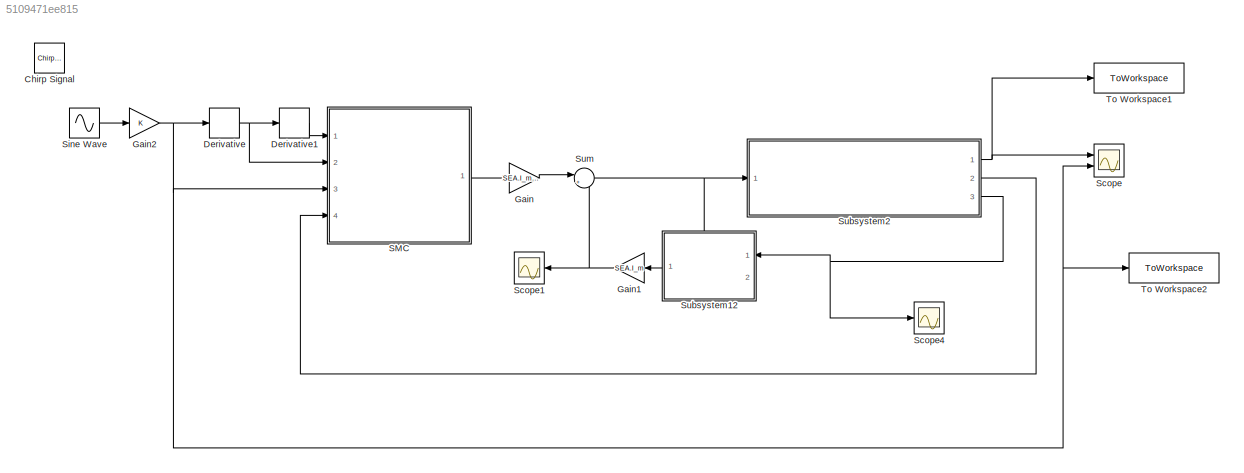
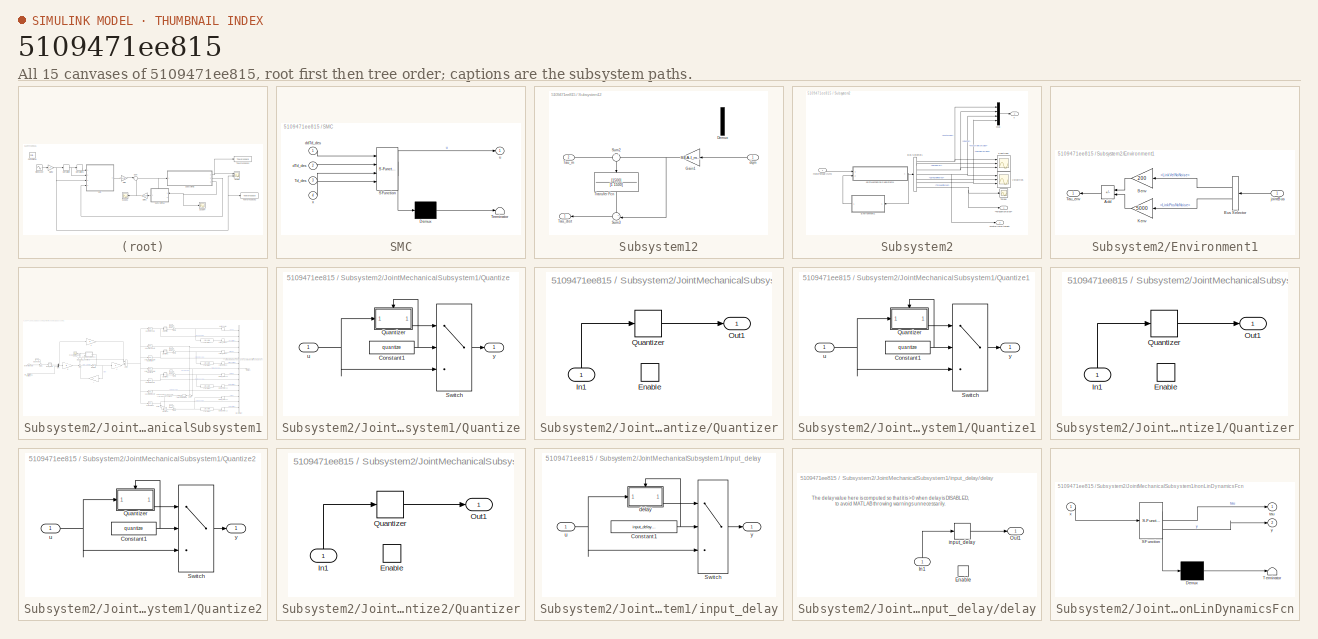
[diagram: thumbnail index - all 15 canvases of the model, root first then tree order]
MODEL slx_5109471ee815
KIND model
CONFIG AbsTol = auto
CONFIG EnableMultiTasking = off
CONFIG FixedStep = 1e-4
CONFIG MaxStep = auto
CONFIG MinStep = auto
CONFIG RelTol = 1e-3
CONFIG SampleTimeConstraint = Unconstrained
CONFIG Solver = FixedStepAuto
CONFIG SolverName = FixedStepAuto
CONFIG StartTime = 0.0
CONFIG StopTime = 10.0
BLOCK [Reference] Chirp Signal  REF=simulink/Sources/Chirp Signal
  Ports = [0, 1]
  SourceBlock = simulink/Sources/Chirp Signal
  SourceProductBaseCode = SL
  SourceType = chirp
BLOCK [Derivative] Derivative
BLOCK [Derivative] Derivative1
BLOCK [Gain] Gain
  Gain = SEA.I_m*SEA.n
BLOCK [Gain] Gain1
  Gain = SEA.I_m
BLOCK [Gain] Gain2
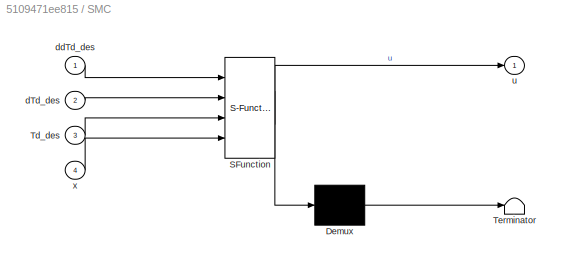
BLOCK [SubSystem] SMC
  ErrorFcn = Stateflow.Translate.translate
  PermitHierarchicalResolution = ExplicitOnly
  Ports = [4, 1]
  RequestExecContextInheritance = off
  SFBlockType = MATLAB Function
  TreatAsAtomicUnit = on
BLOCK [Demux] SMC/ Demux 
  Outputs = 1
  Ports = [1, 1]
BLOCK [S-Function] SMC/ SFunction 
  EnableBusSupport = on
  FunctionName = sf_sfun
  PortCounts = [4 2]
  Ports = [4, 2]
  SFcnIsStateOwnerBlock = off
  SFunctionDeploymentMode = off
  Tag = Stateflow S-Function 2
BLOCK [Terminator] SMC/ Terminator 
BLOCK [Inport] SMC/Td_des
  Port = 3
BLOCK [Inport] SMC/dTd_des
  Port = 2
BLOCK [Inport] SMC/ddTd_des
BLOCK [Outport] SMC/u
BLOCK [Inport] SMC/x
  Port = 4
BLOCK [Scope] Scope
  Floating = off
  NumInputPorts = 2
  Ports = [2]
  ScopeSpecificationString = Simulink.scopes.TimeScopeBlockCfg('CurrentConfiguration', extmgr.ConfigurationSet(extmgr.Configuration('Core','General UI',true),extmgr.Configuration('Core','Source UI',true),extmgr.Configuration('Sources','WiredSimulink',true,'DataLoggingVariableName','ScopeData1'),extmgr.Configuration('Visuals','Time Domain',true,'SerializedDisplays',{struct('MinYLimReal','-1.25835','MaxYLimReal','1.25581','YLab...<+1490ch>
BLOCK [Scope] Scope1
  Floating = off
  NumInputPorts = 1
  Ports = [1]
  ScopeSpecificationString = Simulink.scopes.TimeScopeBlockCfg('CurrentConfiguration', extmgr.ConfigurationSet(extmgr.Configuration('Core','General UI',true),extmgr.Configuration('Core','Source UI',true),extmgr.Configuration('Sources','WiredSimulink',true,'DataLoggingVariableName','ScopeData2'),extmgr.Configuration('Visuals','Time Domain',true,'SerializedDisplays',{struct('MinYLimReal','-68876628264511.375','MaxYLimReal','677...<+1502ch>
BLOCK [Scope] Scope4
  Floating = off
  NumInputPorts = 1
  Ports = [1]
  ScopeSpecificationString = Simulink.scopes.TimeScopeBlockCfg('CurrentConfiguration', extmgr.ConfigurationSet(extmgr.Configuration('Core','General UI',true),extmgr.Configuration('Core','Source UI',true),extmgr.Configuration('Sources','WiredSimulink',true,'DataLoggingVariableName','ScopeData6'),extmgr.Configuration('Visuals','Time Domain',true,'SerializedDisplays',{struct('MinYLimReal','-1.86203','MaxYLimReal','1.82294','YLab...<+1429ch>
BLOCK [Sin] Sine Wave
  Ports = [0, 1]
  SampleTime = 0
BLOCK [SubSystem] Subsystem12
  PortSchema = {"entries":[{"content":{"sides":[{"content":{"connectorIds":["In1"]},"type":"ConnectorPlacement.EquallySpacedRectSide","uuid":"0907aefd-0f6e-4178-ae67-82d4302ffa8c"},{"content":{"connectorIds":["Out1"],"side":"RIGHT"},"type":"ConnectorPlacement.EquallySpacedRectSide","uuid":"771a5b93-7111-4ff8-830e-f982bc5484c0"},{"content":{"connectorIds":["In2"],"side":"TOP"},"type":"ConnectorPlacement.EquallySp...<+247ch>
  Ports = [2, 1]
  RequestExecContextInheritance = off
BLOCK [Demux] Subsystem12/Demux
  Commented = on
  Outputs = 3
  Ports = [1, 3]
BLOCK [Gain] Subsystem12/Gain1
  Gain = SEA.I_m*1500
BLOCK [Sum] Subsystem12/Sum2
  Inputs = +|+
  NameLocation = left
  Ports = [2, 1]
BLOCK [Sum] Subsystem12/Sum3
  Inputs = +-|
  Ports = [2, 1]
BLOCK [Outport] Subsystem12/Tau_dist
BLOCK [Inport] Subsystem12/Tau_m
  Port = 2
BLOCK [TransferFcn] Subsystem12/Transfer Fcn
  Denominator = [1 1500]
  NameLocation = left
  Numerator = [1500]
BLOCK [Inport] Subsystem12/dqm
BLOCK [SubSystem] Subsystem2
  Ports = [1, 3]
  RequestExecContextInheritance = off
BLOCK [Outport] Subsystem2/<MotorVelFiltered>
  Port = 3
BLOCK [Outport] Subsystem2/<TorqueNoNoise>
BLOCK [BusSelector] Subsystem2/Bus Selector1
  OutputSignals = MotorPos,SpringDef,LinkPos,MotorVelNoNoise,SpringVelFiltered,LinkVelNoNoise,TorqueFiltered
  Ports = [1, 7]
BLOCK [SubSystem] Subsystem2/Environment1
  Ports = [1, 1]
  RequestExecContextInheritance = off
BLOCK [Sum] Subsystem2/Environment1/Add
  IconShape = rectangular
  Inputs = --
  Ports = [2, 1]
BLOCK [Gain] Subsystem2/Environment1/Benv
  Gain = 200
BLOCK [BusSelector] Subsystem2/Environment1/Bus Selector
  OutputSignals = LinkVelNoNoise,LinkPosNoNoise
  Ports = [1, 2]
BLOCK [Gain] Subsystem2/Environment1/Kenv
  Gain = 5000
BLOCK [Outport] Subsystem2/Environment1/Tau_env
BLOCK [Inport] Subsystem2/Environment1/jointBus
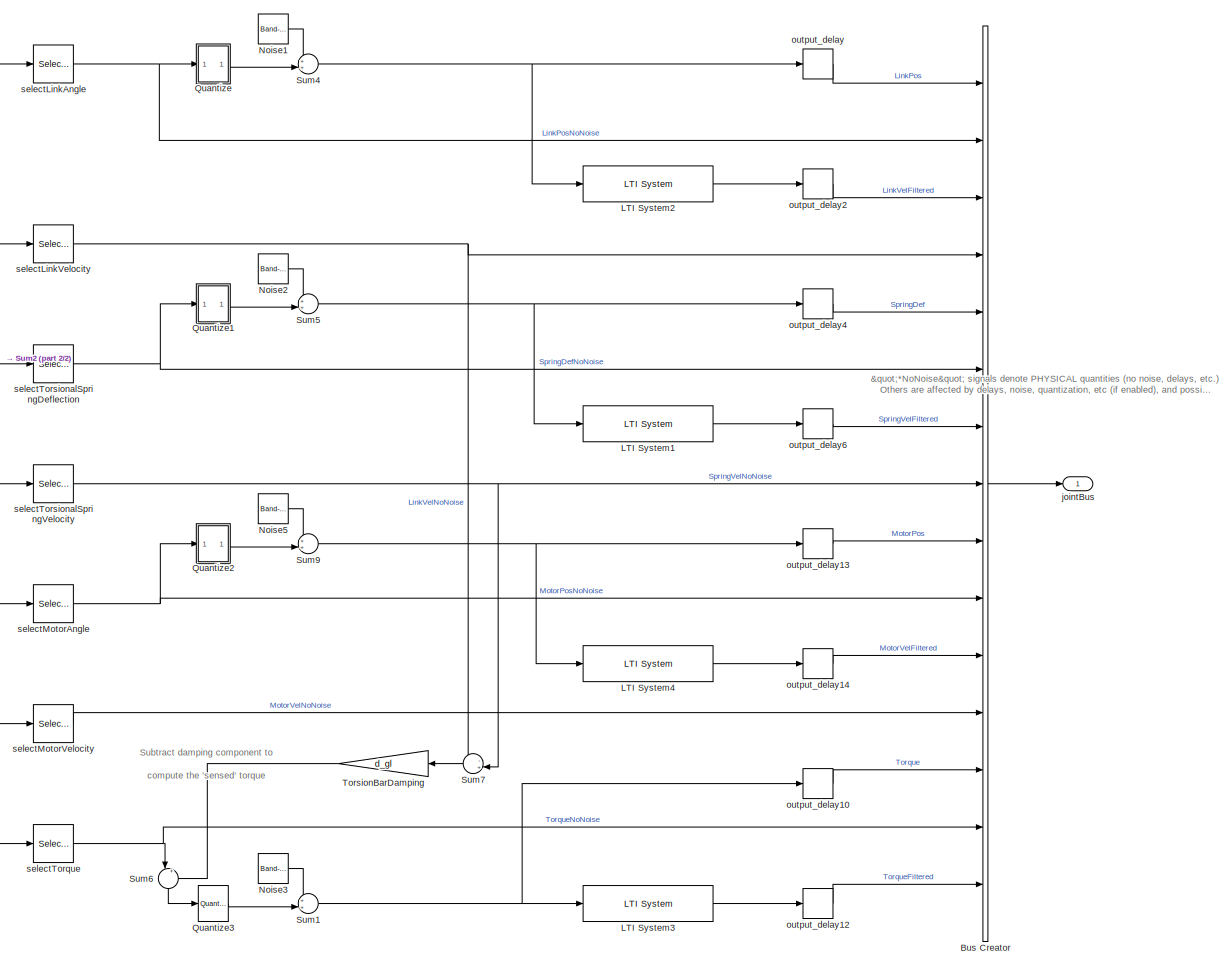
[diagram: Subsystem2/JointMechanicalSubsystem1 - part 1/2, right side, full height]
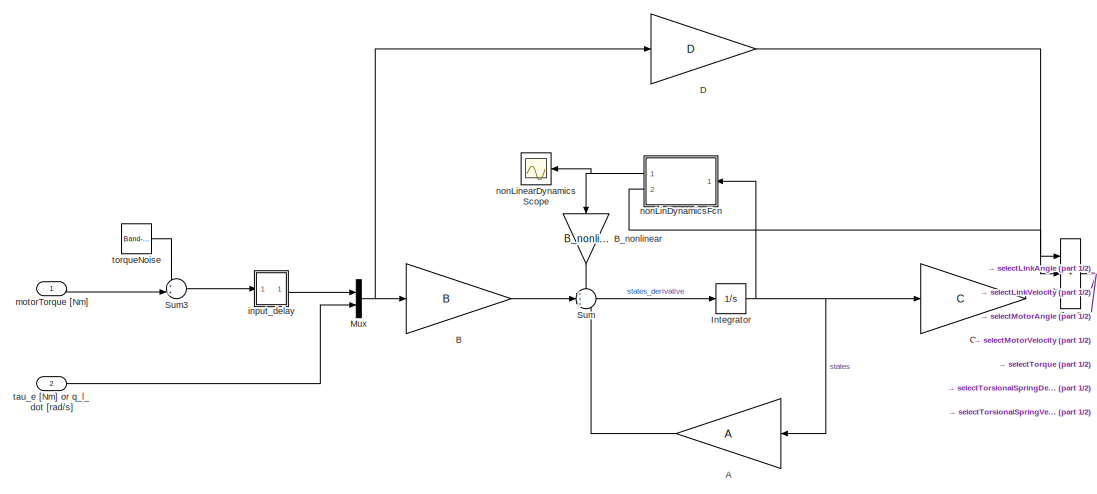
[diagram: Subsystem2/JointMechanicalSubsystem1 - part 2/2, middle left region]
BLOCK [SubSystem] Subsystem2/JointMechanicalSubsystem1
  AncestorBlock = cjt_library_models/Joint models/JointMechanicalSubsystem
  Ports = [2, 1]
  RequestExecContextInheritance = off
BLOCK [Gain] Subsystem2/JointMechanicalSubsystem1/A
  Gain = A
  Multiplication = Matrix(K*u)
BLOCK [Gain] Subsystem2/JointMechanicalSubsystem1/B
  Gain = B
  Multiplication = Matrix(K*u)
BLOCK [Gain] Subsystem2/JointMechanicalSubsystem1/B_nonlinear
  Gain = B_nonlinear
  NameLocation = left
BLOCK [BusCreator] Subsystem2/JointMechanicalSubsystem1/Bus Creator
  DisplayOption = bar
  InheritFromInputs = on
  Inputs = 15
  Ports = [15, 1]
BLOCK [Gain] Subsystem2/JointMechanicalSubsystem1/C
  Gain = C
  Multiplication = Matrix(K*u)
  NameLocation = top
BLOCK [Gain] Subsystem2/JointMechanicalSubsystem1/D
  Gain = D
  Multiplication = Matrix(K*u)
BLOCK [Integrator] Subsystem2/JointMechanicalSubsystem1/Integrator
  Ports = [1, 1]
BLOCK [Reference] Subsystem2/JointMechanicalSubsystem1/LTI System1  REF=cstblocks/LTI System
  Ports = [1, 1]
  SourceBlock = cstblocks/LTI System
  SourceProductBaseCode = CT
  SourceType = LTI Block
BLOCK [Reference] Subsystem2/JointMechanicalSubsystem1/LTI System2  REF=cstblocks/LTI System
  Ports = [1, 1]
  SourceBlock = cstblocks/LTI System
  SourceProductBaseCode = CT
  SourceType = LTI Block
BLOCK [Reference] Subsystem2/JointMechanicalSubsystem1/LTI System3  REF=cstblocks/LTI System
  Ports = [1, 1]
  SourceBlock = cstblocks/LTI System
  SourceProductBaseCode = CT
  SourceType = LTI Block
BLOCK [Reference] Subsystem2/JointMechanicalSubsystem1/LTI System4  REF=cstblocks/LTI System
  Ports = [1, 1]
  SourceBlock = cstblocks/LTI System
  SourceProductBaseCode = CT
  SourceType = LTI Block
BLOCK [Mux] Subsystem2/JointMechanicalSubsystem1/Mux
  DisplayOption = bar
  Inputs = 2
  Ports = [2, 1]
BLOCK [Reference] Subsystem2/JointMechanicalSubsystem1/Noise1  REF=simulink/Sources/Band-Limited
White Noise
  Ports = [0, 1]
  SourceBlock = simulink/Sources/Band-Limited\nWhite Noise
  SourceProductBaseCode = SL
  SourceType = Band-Limited White Noise.
BLOCK [Reference] Subsystem2/JointMechanicalSubsystem1/Noise2  REF=simulink/Sources/Band-Limited
White Noise
  Ports = [0, 1]
  SourceBlock = simulink/Sources/Band-Limited\nWhite Noise
  SourceProductBaseCode = SL
  SourceType = Band-Limited White Noise.
BLOCK [Reference] Subsystem2/JointMechanicalSubsystem1/Noise3  REF=simulink/Sources/Band-Limited
White Noise
  Ports = [0, 1]
  SourceBlock = simulink/Sources/Band-Limited\nWhite Noise
  SourceProductBaseCode = SL
  SourceType = Band-Limited White Noise.
BLOCK [Reference] Subsystem2/JointMechanicalSubsystem1/Noise5  REF=simulink/Sources/Band-Limited
White Noise
  Ports = [0, 1]
  SourceBlock = simulink/Sources/Band-Limited\nWhite Noise
  SourceProductBaseCode = SL
  SourceType = Band-Limited White Noise.
BLOCK [SubSystem] Subsystem2/JointMechanicalSubsystem1/Quantize
  Ports = [1, 1]
  RequestExecContextInheritance = off
BLOCK [Constant] Subsystem2/JointMechanicalSubsystem1/Quantize/Constant1
  Value = quantize
BLOCK [SubSystem] Subsystem2/JointMechanicalSubsystem1/Quantize/Quantizer
  Ports = [1, 1, 1]
  RequestExecContextInheritance = off
BLOCK [EnablePort] Subsystem2/JointMechanicalSubsystem1/Quantize/Quantizer/Enable
  Ports = []
BLOCK [Inport] Subsystem2/JointMechanicalSubsystem1/Quantize/Quantizer/In1
  NameLocation = right
BLOCK [Outport] Subsystem2/JointMechanicalSubsystem1/Quantize/Quantizer/Out1
BLOCK [Quantizer] Subsystem2/JointMechanicalSubsystem1/Quantize/Quantizer/Quantizer
  QuantizationInterval = 1/(2^quantize_bits)
BLOCK [Switch] Subsystem2/JointMechanicalSubsystem1/Quantize/Switch
  Criteria = u2 > Threshold
  InputSameDT = off
  SaturateOnIntegerOverflow = off
  Threshold = 0.5
BLOCK [Inport] Subsystem2/JointMechanicalSubsystem1/Quantize/u
BLOCK [Outport] Subsystem2/JointMechanicalSubsystem1/Quantize/y
BLOCK [SubSystem] Subsystem2/JointMechanicalSubsystem1/Quantize1
  Ports = [1, 1]
  RequestExecContextInheritance = off
BLOCK [Constant] Subsystem2/JointMechanicalSubsystem1/Quantize1/Constant1
  Value = quantize
BLOCK [SubSystem] Subsystem2/JointMechanicalSubsystem1/Quantize1/Quantizer
  Ports = [1, 1, 1]
  RequestExecContextInheritance = off
BLOCK [EnablePort] Subsystem2/JointMechanicalSubsystem1/Quantize1/Quantizer/Enable
  Ports = []
BLOCK [Inport] Subsystem2/JointMechanicalSubsystem1/Quantize1/Quantizer/In1
  NameLocation = right
BLOCK [Outport] Subsystem2/JointMechanicalSubsystem1/Quantize1/Quantizer/Out1
BLOCK [Quantizer] Subsystem2/JointMechanicalSubsystem1/Quantize1/Quantizer/Quantizer
  QuantizationInterval = 1/(2^quantize_bits)
BLOCK [Switch] Subsystem2/JointMechanicalSubsystem1/Quantize1/Switch
  Criteria = u2 > Threshold
  InputSameDT = off
  SaturateOnIntegerOverflow = off
  Threshold = 0.5
BLOCK [Inport] Subsystem2/JointMechanicalSubsystem1/Quantize1/u
BLOCK [Outport] Subsystem2/JointMechanicalSubsystem1/Quantize1/y
BLOCK [SubSystem] Subsystem2/JointMechanicalSubsystem1/Quantize2
  Ports = [1, 1]
  RequestExecContextInheritance = off
BLOCK [Constant] Subsystem2/JointMechanicalSubsystem1/Quantize2/Constant1
  Value = quantize
BLOCK [SubSystem] Subsystem2/JointMechanicalSubsystem1/Quantize2/Quantizer
  Ports = [1, 1, 1]
  RequestExecContextInheritance = off
BLOCK [EnablePort] Subsystem2/JointMechanicalSubsystem1/Quantize2/Quantizer/Enable
  Ports = []
BLOCK [Inport] Subsystem2/JointMechanicalSubsystem1/Quantize2/Quantizer/In1
  NameLocation = right
BLOCK [Outport] Subsystem2/JointMechanicalSubsystem1/Quantize2/Quantizer/Out1
BLOCK [Quantizer] Subsystem2/JointMechanicalSubsystem1/Quantize2/Quantizer/Quantizer
  QuantizationInterval = 1/(2^quantize_bits)
BLOCK [Switch] Subsystem2/JointMechanicalSubsystem1/Quantize2/Switch
  Criteria = u2 > Threshold
  InputSameDT = off
  SaturateOnIntegerOverflow = off
  Threshold = 0.5
BLOCK [Inport] Subsystem2/JointMechanicalSubsystem1/Quantize2/u
BLOCK [Outport] Subsystem2/JointMechanicalSubsystem1/Quantize2/y
BLOCK [Reference] Subsystem2/JointMechanicalSubsystem1/Quantize3  REF=cjt_library_models/Joint models/JointMechanicalSubsystem/Quantize2
  Ports = [1, 1]
  SourceBlock = cjt_library_models/Joint models/JointMechanicalSubsystem/Quantize2
  SourceType = SubSystem
BLOCK [Sum] Subsystem2/JointMechanicalSubsystem1/Sum
  Inputs = +++
  Ports = [3, 1]
BLOCK [Sum] Subsystem2/JointMechanicalSubsystem1/Sum1
  Inputs = ++|
  Ports = [2, 1]
BLOCK [Sum] Subsystem2/JointMechanicalSubsystem1/Sum2
  IconShape = rectangular
  Inputs = +++
  Ports = [3, 1]
BLOCK [Sum] Subsystem2/JointMechanicalSubsystem1/Sum3
  Inputs = ++|
  Ports = [2, 1]
BLOCK [Sum] Subsystem2/JointMechanicalSubsystem1/Sum4
  Inputs = ++|
  Ports = [2, 1]
BLOCK [Sum] Subsystem2/JointMechanicalSubsystem1/Sum5
  Inputs = ++|
  Ports = [2, 1]
BLOCK [Sum] Subsystem2/JointMechanicalSubsystem1/Sum6
  Inputs = |+-
  NameLocation = left
  Ports = [2, 1]
BLOCK [Sum] Subsystem2/JointMechanicalSubsystem1/Sum7
  Inputs = -+|
  NameLocation = top
  Ports = [2, 1]
BLOCK [Sum] Subsystem2/JointMechanicalSubsystem1/Sum9
  Inputs = ++|
  Ports = [2, 1]
BLOCK [Gain] Subsystem2/JointMechanicalSubsystem1/TorsionBarDamping
  Gain = d_gl
  NameLocation = top
BLOCK [SubSystem] Subsystem2/JointMechanicalSubsystem1/input_delay
  Ports = [1, 1]
  RequestExecContextInheritance = off
BLOCK [Constant] Subsystem2/JointMechanicalSubsystem1/input_delay/Constant1
  Value = input_delay_enable
BLOCK [Switch] Subsystem2/JointMechanicalSubsystem1/input_delay/Switch
  Criteria = u2 > Threshold
  InputSameDT = off
  SaturateOnIntegerOverflow = off
BLOCK [SubSystem] Subsystem2/JointMechanicalSubsystem1/input_delay/delay
  Ports = [1, 1, 1]
  RequestExecContextInheritance = off
BLOCK [EnablePort] Subsystem2/JointMechanicalSubsystem1/input_delay/delay/Enable
  Ports = []
BLOCK [Inport] Subsystem2/JointMechanicalSubsystem1/input_delay/delay/In1
  NameLocation = right
BLOCK [Outport] Subsystem2/JointMechanicalSubsystem1/input_delay/delay/Out1
BLOCK [TransportDelay] Subsystem2/JointMechanicalSubsystem1/input_delay/delay/input_delay
  DelayTime = input_delay * jointObj.Ts + 1 - input_delay_enable
  Ports = [1, 1]
  TransDelayFeedthrough = on
BLOCK [Inport] Subsystem2/JointMechanicalSubsystem1/input_delay/u
BLOCK [Outport] Subsystem2/JointMechanicalSubsystem1/input_delay/y
BLOCK [Outport] Subsystem2/JointMechanicalSubsystem1/jointBus
BLOCK [Inport] Subsystem2/JointMechanicalSubsystem1/motorTorque [Nm]
BLOCK [SubSystem] Subsystem2/JointMechanicalSubsystem1/nonLinDynamicsFcn
  ErrorFcn = Stateflow.Translate.translate
  PermitHierarchicalResolution = ExplicitOnly
  Ports = [1, 2]
  RequestExecContextInheritance = off
  SFBlockType = MATLAB Function
  TreatAsAtomicUnit = on
BLOCK [Demux] Subsystem2/JointMechanicalSubsystem1/nonLinDynamicsFcn/ Demux 
  Outputs = 1
  Ports = [1, 1]
BLOCK [S-Function] Subsystem2/JointMechanicalSubsystem1/nonLinDynamicsFcn/ SFunction 
  EnableBusSupport = on
  FunctionName = sf_sfun
  PortCounts = [1 3]
  Ports = [1, 3]
  SFcnIsStateOwnerBlock = off
  SFunctionDeploymentMode = off
  Tag = Stateflow S-Function 1
BLOCK [Terminator] Subsystem2/JointMechanicalSubsystem1/nonLinDynamicsFcn/ Terminator 
BLOCK [Outport] Subsystem2/JointMechanicalSubsystem1/nonLinDynamicsFcn/tau
  PortDimensions = 4
BLOCK [Inport] Subsystem2/JointMechanicalSubsystem1/nonLinDynamicsFcn/x
BLOCK [Outport] Subsystem2/JointMechanicalSubsystem1/nonLinDynamicsFcn/y
  Port = 2
  PortDimensions = 7
BLOCK [Scope] Subsystem2/JointMechanicalSubsystem1/nonLinearDynamicsScope
  Floating = off
  NameLocation = top
  NumInputPorts = 1
  Ports = [1]
  ScopeSpecificationString = Simulink.scopes.TimeScopeBlockCfg('CurrentConfiguration', extmgr.ConfigurationSet(extmgr.Configuration('Core','General UI',true),extmgr.Configuration('Core','Source UI',true),extmgr.Configuration('Sources','WiredSimulink',true,'DataLoggingLimitDataPoints',true,'DataLoggingSaveFormat','Array','DataLoggingDecimation','1','DataLoggingDecimateData',true),extmgr.Configuration('Visuals','Time Domain',tr...<+1773ch>
BLOCK [TransportDelay] Subsystem2/JointMechanicalSubsystem1/output_delay
  DelayTime = output_delay * jointObj.Ts
  Ports = [1, 1]
BLOCK [TransportDelay] Subsystem2/JointMechanicalSubsystem1/output_delay10
  DelayTime = output_delay * jointObj.Ts
  Ports = [1, 1]
BLOCK [TransportDelay] Subsystem2/JointMechanicalSubsystem1/output_delay12
  DelayTime = output_delay * jointObj.Ts
  Ports = [1, 1]
BLOCK [TransportDelay] Subsystem2/JointMechanicalSubsystem1/output_delay13
  DelayTime = output_delay * jointObj.Ts
  Ports = [1, 1]
BLOCK [TransportDelay] Subsystem2/JointMechanicalSubsystem1/output_delay14
  DelayTime = output_delay * jointObj.Ts
  Ports = [1, 1]
BLOCK [TransportDelay] Subsystem2/JointMechanicalSubsystem1/output_delay2
  DelayTime = output_delay * jointObj.Ts
  Ports = [1, 1]
BLOCK [TransportDelay] Subsystem2/JointMechanicalSubsystem1/output_delay4
  DelayTime = output_delay * jointObj.Ts
  Ports = [1, 1]
BLOCK [TransportDelay] Subsystem2/JointMechanicalSubsystem1/output_delay6
  DelayTime = output_delay * jointObj.Ts
  Ports = [1, 1]
BLOCK [Selector] Subsystem2/JointMechanicalSubsystem1/selectLinkAngle
  IndexOptions = Index vector (dialog),Select all
  Indices = 3,1
  InputPortWidth = 3
  NumberOfDimensions = 2
  OutputSizes = 1,1
  Ports = [1, 1]
BLOCK [Selector] Subsystem2/JointMechanicalSubsystem1/selectLinkVelocity
  IndexOptions = Index vector (dialog),Select all
  Indices = 6,1
  InputPortWidth = 3
  NumberOfDimensions = 2
  OutputSizes = 1,1
  Ports = [1, 1]
BLOCK [Selector] Subsystem2/JointMechanicalSubsystem1/selectMotorAngle
  IndexOptions = Index vector (dialog),Select all
  Indices = 1,1
  InputPortWidth = 3
  NumberOfDimensions = 2
  OutputSizes = 1,1
  Ports = [1, 1]
BLOCK [Selector] Subsystem2/JointMechanicalSubsystem1/selectMotorVelocity
  IndexOptions = Index vector (dialog),Select all
  Indices = 4,1
  InputPortWidth = 3
  NumberOfDimensions = 2
  OutputSizes = 1,1
  Ports = [1, 1]
BLOCK [Selector] Subsystem2/JointMechanicalSubsystem1/selectTorque
  IndexOptions = Index vector (dialog),Select all
  Indices = 7,1
  InputPortWidth = 3
  NumberOfDimensions = 2
  OutputSizes = 1,1
  Ports = [1, 1]
BLOCK [Selector] Subsystem2/JointMechanicalSubsystem1/selectTorsionalSpringDeflection
  IndexOptions = Index vector (dialog),Select all
  Indices = 2,1
  InputPortWidth = 3
  NumberOfDimensions = 2
  OutputSizes = 1,1
  Ports = [1, 1]
BLOCK [Selector] Subsystem2/JointMechanicalSubsystem1/selectTorsionalSpringVelocity
  IndexOptions = Index vector (dialog),Select all
  Indices = 5,1
  InputPortWidth = 3
  NumberOfDimensions = 2
  OutputSizes = 1,1
  Ports = [1, 1]
BLOCK [Inport] Subsystem2/JointMechanicalSubsystem1/tau_e [Nm] or q_l_dot [rad//s]
  Port = 2
BLOCK [Reference] Subsystem2/JointMechanicalSubsystem1/torqueNoise  REF=simulink/Sources/Band-Limited
White Noise
  Ports = [0, 1]
  SourceBlock = simulink/Sources/Band-Limited\nWhite Noise
  SourceProductBaseCode = SL
  SourceType = Band-Limited White Noise.
BLOCK [Mux] Subsystem2/Mux
  DisplayOption = bar
  Ports = [4, 1]
BLOCK [Scope] Subsystem2/Positions
  Floating = off
  NameLocation = right
  NumInputPorts = 3
  Ports = [3]
  ScopeSpecificationString = Simulink.scopes.TimeScopeBlockCfg('CurrentConfiguration', extmgr.ConfigurationSet(extmgr.Configuration('Core','General UI',true),extmgr.Configuration('Core','Source UI',true),extmgr.Configuration('Sources','WiredSimulink',true,'DataLoggingVariableName','ScopeData1'),extmgr.Configuration('Visuals','Time Domain',true,'SerializedDisplays',{struct('MinYLimReal','-0.59005','MaxYLimReal','5.30101','YLab...<+2748ch>
BLOCK [Scope] Subsystem2/Torque
  Floating = off
  NameLocation = right
  NumInputPorts = 1
  Ports = [1]
  ScopeSpecificationString = Simulink.scopes.TimeScopeBlockCfg('CurrentConfiguration', extmgr.ConfigurationSet(extmgr.Configuration('Core','General UI',true),extmgr.Configuration('Core','Source UI',true),extmgr.Configuration('Sources','WiredSimulink',true,'DataLoggingVariableName','ScopeData3'),extmgr.Configuration('Visuals','Time Domain',true,'SerializedDisplays',{struct('MinYLimReal','-1.25911','MaxYLimReal','1.25907','YLab...<+1419ch>
BLOCK [Scope] Subsystem2/Velocities
  Floating = off
  NameLocation = right
  NumInputPorts = 3
  Ports = [3]
  ScopeSpecificationString = Simulink.scopes.TimeScopeBlockCfg('CurrentConfiguration', extmgr.ConfigurationSet(extmgr.Configuration('Core','General UI',true),extmgr.Configuration('Core','Source UI',true),extmgr.Configuration('Sources','WiredSimulink',true,'DataLoggingVariableName','ScopeData2'),extmgr.Configuration('Visuals','Time Domain',true,'SerializedDisplays',{struct('MinYLimReal','-25.44222','MaxYLimReal','89.97088','YL...<+2799ch>
BLOCK [Inport] Subsystem2/motorTorque [Nm]
BLOCK [Outport] Subsystem2/x
  Port = 2
BLOCK [Sum] Sum
  Inputs = |++
  Ports = [2, 1]
BLOCK [ToWorkspace] To Workspace1
  FixptAsFi = on
  MaxDataPoints = inf
  Ports = [1]
  SampleTime = -1
  Save2DSignal = 2-D array (concatenate along first dimension)
  VariableName = SMC_y
BLOCK [ToWorkspace] To Workspace2
  FixptAsFi = on
  MaxDataPoints = inf
  Ports = [1]
  SampleTime = -1
  Save2DSignal = 2-D array (concatenate along first dimension)
  VariableName = SMC_u
ANNOTATION Subsystem2/JointMechanicalSubsystem1: Subtract damping component to compute the 'sensed' torque
ANNOTATION Subsystem2/JointMechanicalSubsystem1: "*NoNoise" signals denote PHYSICAL quantities (no noise, delays, etc.) Others are affected by delays, noise, quantization, etc (if enabled), and possibly filtered ("*Filtered")
ANNOTATION Subsystem2/JointMechanicalSubsystem1/input_delay/delay: The delay value here is computed so that it is >0 when delay is DISABLED, to avoid MATLAB throwing warnings unnecessarily.
LINE Derivative1:1 -> SMC:1
NET Derivative:1 -> Derivative1:1, SMC:2
NET Gain1:1 -> Scope1:1, Sum:2
NET Gain2:1 -> Derivative:1, SMC:3, Scope:2, To Workspace2:1
LINE Gain:1 -> Sum:1
LINE SMC:1 -> Gain:1
LINE Sine Wave:1 -> Gain2:1
NET Subsystem12/Gain1:1 -> Subsystem12/Sum2:2, Subsystem12/Sum3:2
LINE Subsystem12/Sum2:1 -> Subsystem12/Transfer Fcn:1
LINE Subsystem12/Sum3:1 -> Subsystem12/Tau_dist:1
LINE Subsystem12/Tau_m:1 -> Subsystem12/Sum2:1
LINE Subsystem12/Transfer Fcn:1 -> Subsystem12/Sum3:1
LINE Subsystem12/dqm:1 -> Subsystem12/Gain1:1
LINE Subsystem12:1 -> Gain1:1
NET Subsystem2/Bus Selector1:1 -> Subsystem2/Mux:1, Subsystem2/Positions:1
LINE Subsystem2/Bus Selector1:2 -> Subsystem2/Positions:2
NET Subsystem2/Bus Selector1:3 -> Subsystem2/Mux:2, Subsystem2/Positions:3
NET Subsystem2/Bus Selector1:4 -> Subsystem2/<MotorVelFiltered>:1, Subsystem2/Mux:3, Subsystem2/Velocities:1
LINE Subsystem2/Bus Selector1:5 -> Subsystem2/Velocities:2
NET Subsystem2/Bus Selector1:6 -> Subsystem2/Mux:4, Subsystem2/Velocities:3
NET Subsystem2/Bus Selector1:7 -> Subsystem2/<TorqueNoNoise>:1, Subsystem2/Torque:1
LINE Subsystem2/Environment1/Add:1 -> Subsystem2/Environment1/Tau_env:1
LINE Subsystem2/Environment1/Benv:1 -> Subsystem2/Environment1/Add:1
LINE Subsystem2/Environment1/Bus Selector:1 -> Subsystem2/Environment1/Benv:1
LINE Subsystem2/Environment1/Bus Selector:2 -> Subsystem2/Environment1/Kenv:1
LINE Subsystem2/Environment1/Kenv:1 -> Subsystem2/Environment1/Add:2
LINE Subsystem2/Environment1/jointBus:1 -> Subsystem2/Environment1/Bus Selector:1
LINE Subsystem2/Environment1:1 -> Subsystem2/JointMechanicalSubsystem1:2
NET Subsystem2/JointMechanicalSubsystem1:1 -> Subsystem2/Bus Selector1:1, Subsystem2/Environment1:1
LINE Subsystem2/Mux:1 -> Subsystem2/x:1
LINE Subsystem2/motorTorque [Nm]:1 -> Subsystem2/JointMechanicalSubsystem1:1
NET Subsystem2:1 -> Scope:1, To Workspace1:1
LINE Subsystem2:2 -> SMC:4
NET Subsystem2:3 -> Scope4:1, Subsystem12:1
NET Sum:1 -> Subsystem12:2, Subsystem2:1
note: NET lines group one-source signal fan-out (src -> all destinations, sorted); 1:1 wires keep LINE
CHART Subsystem2/JointMechanicalSubsystem1/nonLinDynamicsFcn states=1 transitions=1
  STATE_LABEL 'eML_blk_kernel()'
  STATE_LABEL 'SCRIPT:\nfunction [tau, y] = nonLinDynamics(x)\n%#codegen\n\nparams.a_CU = 0.003900;\nparams.c_CU = 380.000000;\nparams.c_FE = 460.000000;\nparams.diam = 98.000000;\nparams.len = 166.000000;\nparams.m = 3.400000;\nparams.I_m = 0.000278;\nparams.I_g = 0.000000;\nparams.I_l = 0.070000;\nparams.k_g = 0.000000;\nparams.k_b = 5000.000000;\nparams.d_m = 0.001500;\nparams.d_g = 0.000000;\nparams.d_l = 0.005000;\nparams.d_...<+1152ch>'
CHART SMC states=1 transitions=1
  STATE_LABEL 'eML_blk_kernel()'
  STATE_LABEL 'SCRIPT:\nfunction u = fcn(ddTd_des, dTd_des, Td_des, x)\n\nc = 2000;\np = 100;\n\nJm = (2.781e-04); % kgm^2 \nBm = (1.5e-03);   % Nms/rad\nJl = 0.07;      % kgm^2 \nBl = 0.005;     % Nms/rad\nKs = 5000;      %Nm/rad\nN = 100;        % -\n\nqm = x(1);\nql = x(2);\ndqm = x(3);\ndql = x(4);\n\nqd = qm/N - ql;\ndqd = dqm/N - dql;\n\nqd_des = Td_des/Ks;\ndqd_des = dTd_des/Ks;\nddqd_des = ddTd_des/Ks;\n\ne = qd_des - qd;\nde = d...<+162ch>'
CHART  states=0 transitions=0
CHART  states=0 transitions=0
